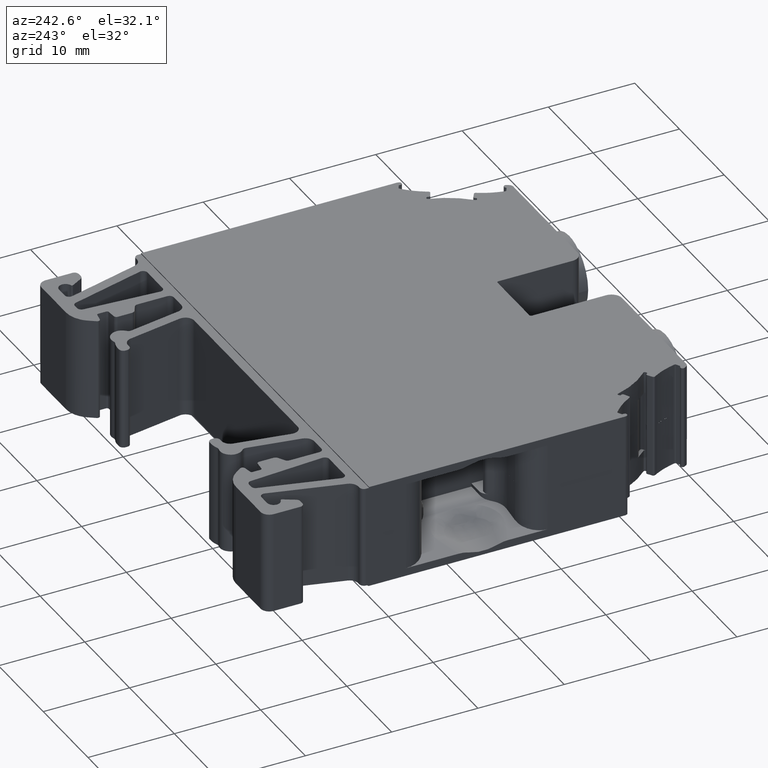
[diagram: clean part render]
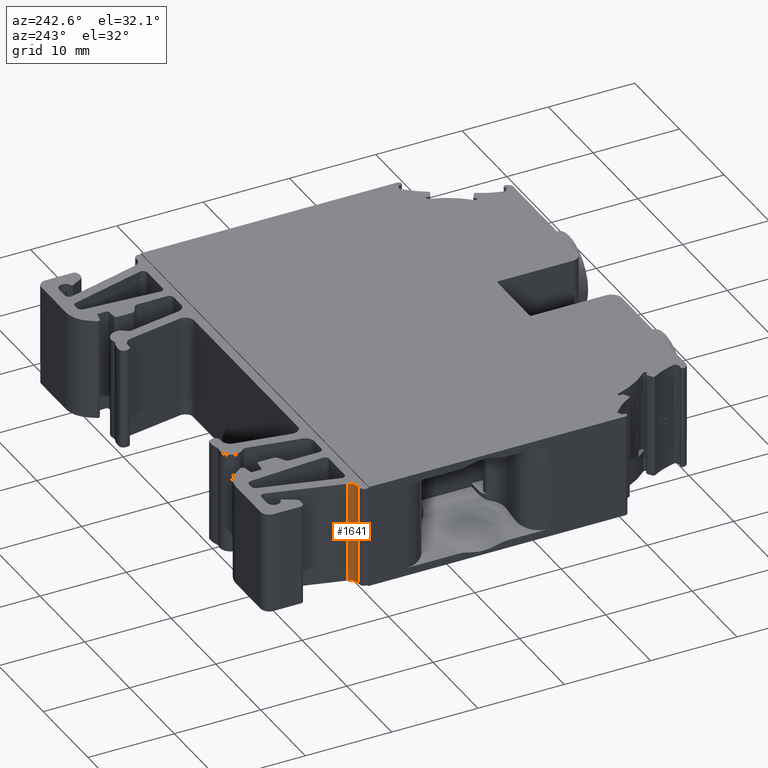
[diagram: same view with one face highlighted and labeled with its STEP entity id]
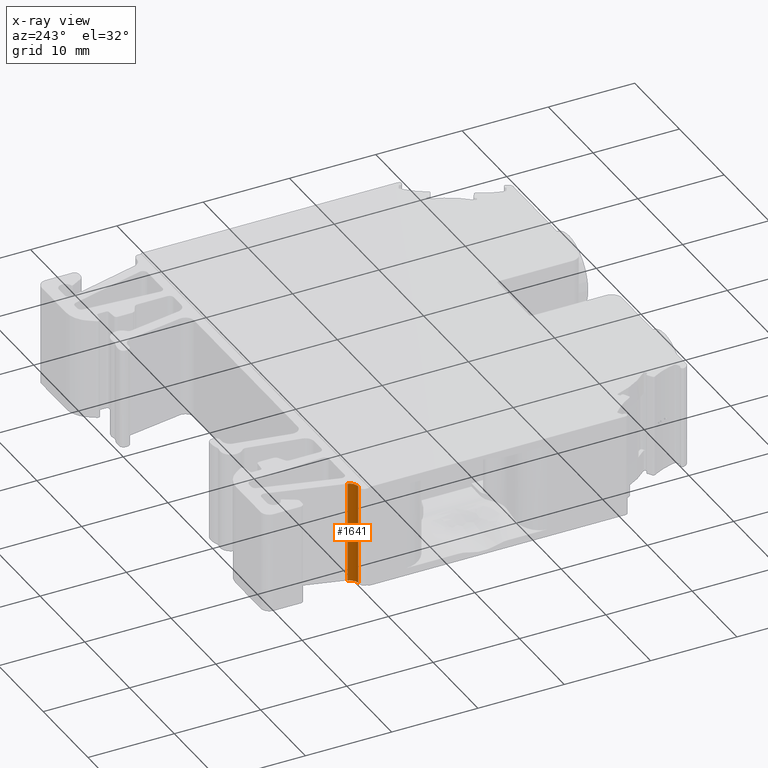
[diagram: x-ray of the same camera — body ghosted, the highlighted face saturated]
A machine part, auxiliary view. The second image highlights one B-rep face of the part: STEP entity #1641.
The next image is the same camera in x-ray: the body ghosted, the highlighted face saturated — about 0% of this face is hidden behind the body in this view.
In plain terms, the highlighted cylindrical surface (edge-blend (fillet) strip) has radius 1 mm, axis along (-0, 0, -1).
Its self-contained STEP definition (entity closure, byte-faithful):
#567 = CYLINDRICAL_SURFACE ( 'NONE', #21523, 0.9999634034689453000 ) ;
#586 = DIRECTION ( 'NONE',  ( -1.000000000000000000, 0.0000000000000000000, 5.551318282117688500E-014 ) ) ;
#590 = FACE_OUTER_BOUND ( 'NONE', #23040, .T. ) ;
#592 = DIRECTION ( 'NONE',  ( -4.390856063678060100E-014, 3.704122705312689700E-014, -1.000000000000000000 ) ) ;
#604 = CARTESIAN_POINT ( 'NONE',  ( -134.6594653626567900, 241.7301636242444800, -135.1833561645786100 ) ) ;
#1641 = ADVANCED_FACE ( 'NONE', ( #590 ), #567, .F. ) ;
#3429 = ORIENTED_EDGE ( 'NONE', *, *, #6843, .F. ) ;
#3430 = ORIENTED_EDGE ( 'NONE', *, *, #15183, .F. ) ;
#3448 = ORIENTED_EDGE ( 'NONE', *, *, #15309, .F. ) ;
#3455 = ORIENTED_EDGE ( 'NONE', *, *, #6870, .F. ) ;
#5548 = CARTESIAN_POINT ( 'NONE',  ( -133.6935660778833600, 241.4713869252328200, -136.6333030996086400 ) ) ;
#5591 = CARTESIAN_POINT ( 'NONE',  ( -134.6594653626569900, 240.7302002207756300, -136.6333030996086400 ) ) ;
#5673 = CARTESIAN_POINT ( 'NONE',  ( -134.6594653626573300, 240.7302002207760600, -148.3828730903682400 ) ) ;
#5697 = CARTESIAN_POINT ( 'NONE',  ( -133.6935660778838400, 241.4713869252331100, -148.3828730903681800 ) ) ;
#6843 = EDGE_CURVE ( 'NONE', #9045, #8854, #13318, .T. ) ;
#6870 = EDGE_CURVE ( 'NONE', #8873, #8999, #13426, .T. ) ;
#8854 = VERTEX_POINT ( 'NONE', #5548 ) ;
#8873 = VERTEX_POINT ( 'NONE', #5591 ) ;
#8999 = VERTEX_POINT ( 'NONE', #5673 ) ;
#9045 = VERTEX_POINT ( 'NONE', #5697 ) ;
#12673 = B_SPLINE_CURVE_WITH_KNOTS ( 'NONE', 3,
 ( #18008, #18014, #18037, #18007, #18042, #18030, #18046, #18006, #18010, #18044, #18025, #17993, #17991, #18024, #18003, #18041 ),
 .UNSPECIFIED., .F., .F.,
 ( 4, 1, 2, 2, 2, 1, 2, 2, 4 ),
 ( 0.0000000000000000000, 0.1250000000000529600, 0.1875000000000494600, 0.2500000000000459600, 0.4999999999999466000, 0.6249999999998968600, 0.6874999999999139600, 0.7499999999999311700, 1.000000000000000000 ),
 .UNSPECIFIED. ) ;
#12792 = B_SPLINE_CURVE_WITH_KNOTS ( 'NONE', 3,
 ( #14101, #14095, #14157, #14165, #14167, #14175, #14139, #14163 ),
 .UNSPECIFIED., .F., .F.,
 ( 4, 2, 2, 4 ),
 ( 0.0000000000000000000, 0.2500000000000096600, 0.5000000000000193200, 1.000000000000000000 ),
 .UNSPECIFIED. ) ;
#13225 = VECTOR ( 'NONE', #13365, 1000.000000000000000 ) ;
#13265 = VECTOR ( 'NONE', #13432, 1000.000000000000000 ) ;
#13318 = LINE ( 'NONE', #13381, #13225 ) ;
#13365 = DIRECTION ( 'NONE',  ( 5.022720691121513300E-014, -1.345650732946167600E-014, 1.000000000000000000 ) ) ;
#13381 = CARTESIAN_POINT ( 'NONE',  ( -133.6935660778831900, 241.4713869252329300, -135.1833561645780200 ) ) ;
#13426 = LINE ( 'NONE', #13459, #13265 ) ;
#13432 = DIRECTION ( 'NONE',  ( -4.390856063678060100E-014, 3.704122705312689700E-014, -1.000000000000000000 ) ) ;
#13459 = CARTESIAN_POINT ( 'NONE',  ( -134.6594653626569300, 240.7302002207755400, -135.1833561645786400 ) ) ;
#14095 = CARTESIAN_POINT ( 'NONE',  ( -134.5498582687963800, 240.7303186344894400, -148.3828730903682600 ) ) ;
#14101 = CARTESIAN_POINT ( 'NONE',  ( -134.6594653626573300, 240.7302002207760600, -148.3828730903682400 ) ) ;
#14139 = CARTESIAN_POINT ( 'NONE',  ( -133.7503402937173000, 241.2603860061362600, -148.3828730903682400 ) ) ;
#14157 = CARTESIAN_POINT ( 'NONE',  ( -134.4436030816713700, 240.7478732590879800, -148.3828730903682400 ) ) ;
#14163 = CARTESIAN_POINT ( 'NONE',  ( -133.6935660778838400, 241.4713869252331100, -148.3828730903681800 ) ) ;
#14165 = CARTESIAN_POINT ( 'NONE',  ( -134.2327611754800500, 240.8195671295332500, -148.3828730903682600 ) ) ;
#14167 = CARTESIAN_POINT ( 'NONE',  ( -134.1374943929804100, 240.8701828904895900, -148.3828730903682600 ) ) ;
#14175 = CARTESIAN_POINT ( 'NONE',  ( -133.8771493497560200, 241.0701832508027800, -148.3828730903682600 ) ) ;
#15183 = EDGE_CURVE ( 'NONE', #8854, #8873, #12673, .T. ) ;
#15309 = EDGE_CURVE ( 'NONE', #8999, #9045, #12792, .T. ) ;
#17991 = CARTESIAN_POINT ( 'NONE',  ( -134.3214247639654700, 240.7887294268561200, -136.6333030996087000 ) ) ;
#17993 = CARTESIAN_POINT ( 'NONE',  ( -134.2931065077305800, 240.7993144336552700, -136.6333030996086700 ) ) ;
#18003 = CARTESIAN_POINT ( 'NONE',  ( -134.5514299460886000, 240.7304233505894000, -136.6333030996086400 ) ) ;
#18006 = CARTESIAN_POINT ( 'NONE',  ( -133.9615817953418000, 241.0053914808866000, -136.6333030996086400 ) ) ;
#18007 = CARTESIAN_POINT ( 'NONE',  ( -133.7694562992259900, 241.2736059805316100, -136.6333030996086700 ) ) ;
#18008 = CARTESIAN_POINT ( 'NONE',  ( -133.6935660778833600, 241.4713869252328200, -136.6333030996086400 ) ) ;
#18010 = CARTESIAN_POINT ( 'NONE',  ( -134.0952781701862500, 240.9025787754472100, -136.6333030996086700 ) ) ;
#18014 = CARTESIAN_POINT ( 'NONE',  ( -133.7075610518217000, 241.4195788541030400, -136.6333030996086700 ) ) ;
#18024 = CARTESIAN_POINT ( 'NONE',  ( -134.4471301024218500, 240.7471619187420200, -136.6333030996087000 ) ) ;
#18025 = CARTESIAN_POINT ( 'NONE',  ( -134.2414259569333400, 240.8212874207555400, -136.6333030996087000 ) ) ;
#18030 = CARTESIAN_POINT ( 'NONE',  ( -133.8076569495618200, 241.2056777207120300, -136.6333030996086700 ) ) ;
#18037 = CARTESIAN_POINT ( 'NONE',  ( -133.7342421771833800, 241.3445671302135300, -136.6333030996086700 ) ) ;
#18041 = CARTESIAN_POINT ( 'NONE',  ( -134.6594653626569900, 240.7302002207756300, -136.6333030996086400 ) ) ;
#18042 = CARTESIAN_POINT ( 'NONE',  ( -133.7948286020724400, 241.2271986750120000, -136.6333030996087000 ) ) ;
#18044 = CARTESIAN_POINT ( 'NONE',  ( -134.1656839038664100, 240.8573213800839900, -136.6333030996087000 ) ) ;
#18046 = CARTESIAN_POINT ( 'NONE',  ( -133.8845983874823300, 241.0879969216266000, -136.6333030996086700 ) ) ;
#21523 = AXIS2_PLACEMENT_3D ( 'NONE', #604, #592, #586 ) ;
#23040 = EDGE_LOOP ( 'NONE', ( #3429, #3448, #3455, #3430 ) ) ;